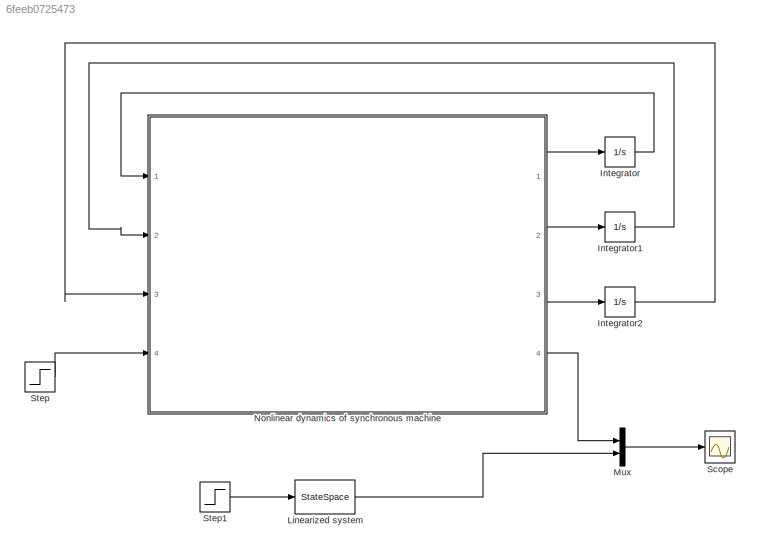
MODEL slx_6feeb0725473
KIND model
CONFIG AbsTol = auto
CONFIG EnableMultiTasking = off
CONFIG FixedStep = auto
CONFIG MaxStep = auto
CONFIG MinStep = auto
CONFIG RelTol = 1e-3
CONFIG SampleTimeConstraint = Unconstrained
CONFIG Solver = VariableStepAuto
CONFIG SolverName = VariableStepAuto
CONFIG StartTime = 0.0
CONFIG StopTime = 30
BLOCK [Integrator] Integrator
  InitialCondition = 0.5468
  Ports = [1, 1]
BLOCK [Integrator] Integrator1
  Ports = [1, 1]
BLOCK [Integrator] Integrator2
  InitialCondition = 9.6926
  Ports = [1, 1]
BLOCK [StateSpace] Linearized system
  A = [0 1 0;-77.3707 -0.2703 -6.2447;-0.9879 0 -0.322]
  B = [0 0 1].'
  C = [1 0 0]
  D = 0
  InitialCondition = [0.5468 0 9.6926].'
  Ports = [1, 1]
BLOCK [Mux] Mux
  DisplayOption = bar
  Inputs = 2
  Ports = [2, 1]
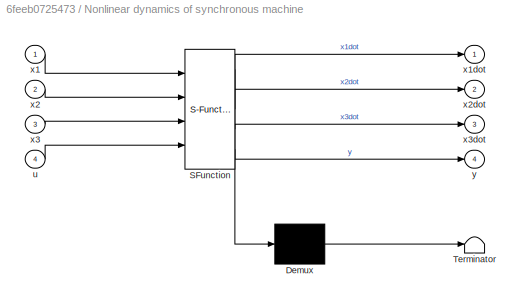
BLOCK [SubSystem] Nonlinear dynamics of synchronous machine
  ErrorFcn = Stateflow.Translate.translate
  PermitHierarchicalResolution = ExplicitOnly
  Ports = [4, 4]
  RequestExecContextInheritance = off
  SFBlockType = MATLAB Function
  TreatAsAtomicUnit = on
BLOCK [Demux] Nonlinear dynamics of synchronous machine/ Demux 
  Outputs = 1
  Ports = [1, 1]
BLOCK [S-Function] Nonlinear dynamics of synchronous machine/ SFunction 
  EnableBusSupport = on
  FunctionName = sf_sfun
  PortCounts = [4 5]
  Ports = [4, 5]
  SFcnIsStateOwnerBlock = off
  SFunctionDeploymentMode = off
  Tag = Stateflow S-Function 2
BLOCK [Terminator] Nonlinear dynamics of synchronous machine/ Terminator 
BLOCK [Inport] Nonlinear dynamics of synchronous machine/u
  IconDisplay = Port number
  Port = 4
BLOCK [Inport] Nonlinear dynamics of synchronous machine/x1
  IconDisplay = Port number
BLOCK [Outport] Nonlinear dynamics of synchronous machine/x1dot
  IconDisplay = Port number
BLOCK [Inport] Nonlinear dynamics of synchronous machine/x2
  IconDisplay = Port number
  Port = 2
BLOCK [Outport] Nonlinear dynamics of synchronous machine/x2dot
  IconDisplay = Port number
  Port = 2
BLOCK [Inport] Nonlinear dynamics of synchronous machine/x3
  IconDisplay = Port number
  Port = 3
BLOCK [Outport] Nonlinear dynamics of synchronous machine/x3dot
  IconDisplay = Port number
  Port = 3
BLOCK [Outport] Nonlinear dynamics of synchronous machine/y
  IconDisplay = Port number
  Port = 4
BLOCK [Scope] Scope
  Floating = off
  NumInputPorts = 1
  Ports = [1]
  ScopeSpecificationString = Simulink.scopes.TimeScopeBlockCfg('CurrentConfiguration', extmgr.ConfigurationSet(extmgr.Configuration('Core','General UI',true,'FigureColor',[1 1 1]),extmgr.Configuration('Core','Source UI',true),extmgr.Configuration('Sources','WiredSimulink',true),extmgr.Configuration('Visuals','Time Domain',true,'SerializedDisplays',{struct('MinYLimReal','-2.1925','MaxYLimReal','0.85117','YLabelReal','y(t)','Mi...<+1854ch>
BLOCK [Step] Step
  SampleTime = 0
  Time = 0
BLOCK [Step] Step1
  SampleTime = 0
  Time = 0
LINE Integrator1:1 -> Nonlinear dynamics of synchronous machine:2
LINE Integrator2:1 -> Nonlinear dynamics of synchronous machine:3
LINE Integrator:1 -> Nonlinear dynamics of synchronous machine:1
LINE Linearized system:1 -> Mux:2
LINE Mux:1 -> Scope:1
LINE Nonlinear dynamics of synchronous machine:1 -> Integrator:1
LINE Nonlinear dynamics of synchronous machine:2 -> Integrator1:1
LINE Nonlinear dynamics of synchronous machine:3 -> Integrator2:1
LINE Nonlinear dynamics of synchronous machine:4 -> Mux:1
LINE Step1:1 -> Linearized system:1
LINE Step:1 -> Nonlinear dynamics of synchronous machine:4
CHART Nonlinear dynamics of synchronous machine states=1 transitions=1
  STATE_LABEL 'eML_blk_kernel()'
  STATE_LABEL 'SCRIPT:\nfunction [x1dot,x2dot,x3dot,y] = fcn(x1,x2,x3,u)\nx1dot=x2;\nx2dot=-0.2703*x2+24.02*sin(2*x1)-12.01*x3*sin(x1);\nx3dot=u-0.3222*x3+1.9*cos(x1);\ny=x1;\nend\n'
